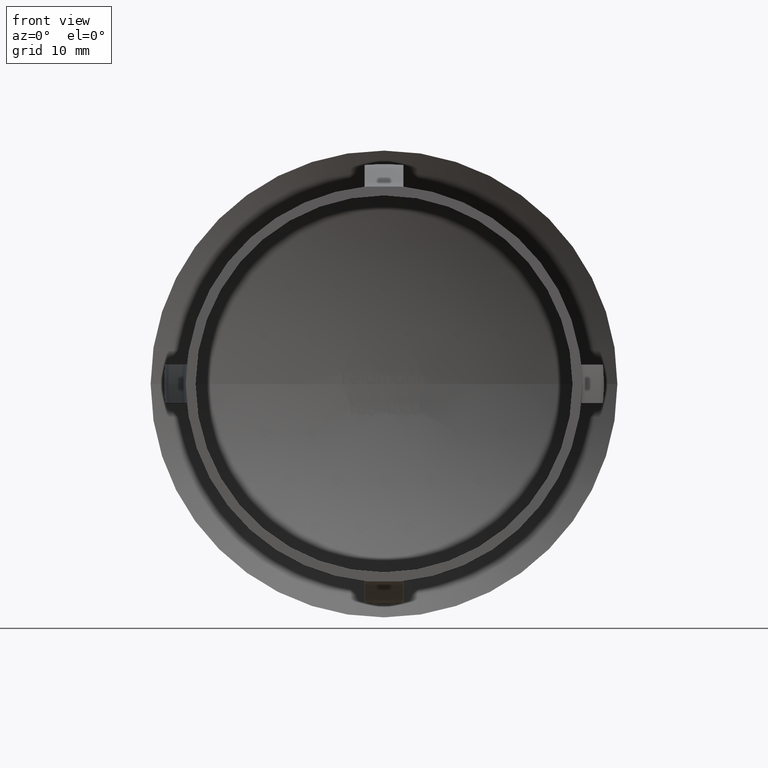
[diagram: clean part render]
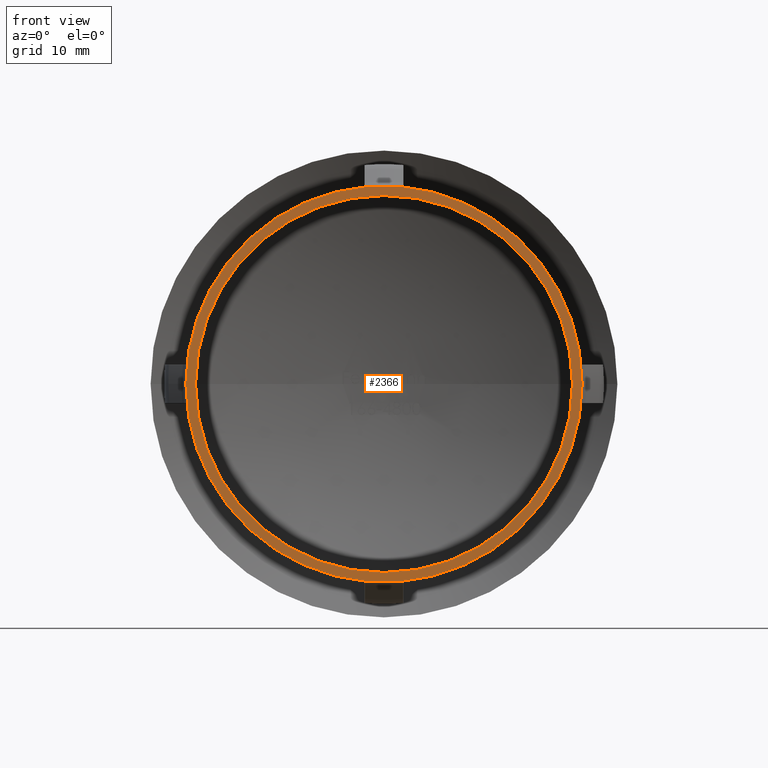
[diagram: same view with one face highlighted and labeled with its STEP entity id]
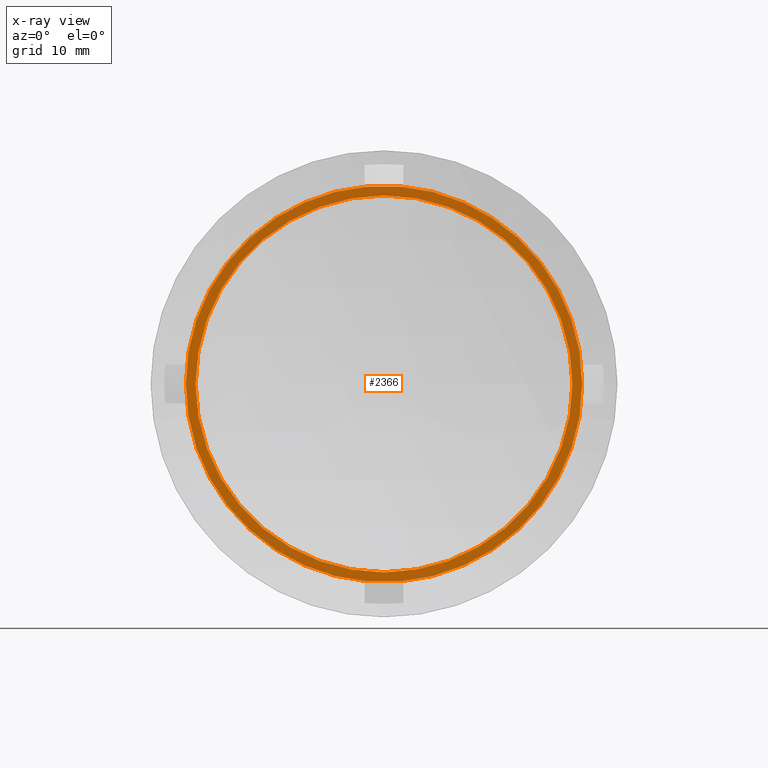
[diagram: x-ray of the same camera — body ghosted, the highlighted face saturated]
A machine part, front view. The second image highlights one B-rep face of the part: STEP entity #2366.
The next image is the same camera in x-ray: the body ghosted, the highlighted face saturated — about 0% of this face is hidden behind the body in this view.
In plain terms, the highlighted planar face has unit normal (-0, -1, 0).
Its self-contained STEP definition (entity closure, byte-faithful):
#163 = DIRECTION ( 'NONE',  ( -2.904862207577519400E-015, -1.000000000000000000, -0.0000000000000000000 ) ) ;
#428 = VERTEX_POINT ( 'NONE', #4456 ) ;
#437 = CARTESIAN_POINT ( 'NONE',  ( -8.743635244808318400E-014, 5.551115123125782700E-014, 0.0000000000000000000 ) ) ;
#496 = DIRECTION ( 'NONE',  ( 1.000000000000000000, -2.904862207577519000E-015, 0.0000000000000000000 ) ) ;
#817 = AXIS2_PLACEMENT_3D ( 'NONE', #437, #14057, #3641 ) ;
#1479 = CARTESIAN_POINT ( 'NONE',  ( -8.743635244808317200E-014, 5.898059818321144100E-014, 0.0000000000000000000 ) ) ;
#1791 = CARTESIAN_POINT ( 'NONE',  ( 20.50000000000000400, -5.690770721279668900E-016, 0.0000000000000000000 ) ) ;
#1948 = EDGE_CURVE ( 'NONE', #6779, #3374, #13815, .T. ) ;
#2024 = CARTESIAN_POINT ( 'NONE',  ( -19.50000000000017400, 1.121559642790197000E-013, 2.388061258337353900E-015 ) ) ;
#2229 = ORIENTED_EDGE ( 'NONE', *, *, #9957, .T. ) ;
#2270 = DIRECTION ( 'NONE',  ( -2.904862207577519400E-015, -1.000000000000000000, -0.0000000000000000000 ) ) ;
#2366 = ADVANCED_FACE ( 'NONE', ( #8293, #4306 ), #3148, .T. ) ;
#2601 = CIRCLE ( 'NONE', #9089, 20.50000000000009200 ) ;
#2656 = AXIS2_PLACEMENT_3D ( 'NONE', #1479, #12858, #496 ) ;
#3148 = PLANE ( 'NONE',  #12391 ) ;
#3374 = VERTEX_POINT ( 'NONE', #2024 ) ;
#3641 = DIRECTION ( 'NONE',  ( 1.000000000000000000, -2.904862207577519400E-015, 0.0000000000000000000 ) ) ;
#4293 = DIRECTION ( 'NONE',  ( 1.000000000000000000, -2.904862207577519400E-015, 0.0000000000000000000 ) ) ;
#4306 = FACE_BOUND ( 'NONE', #6874, .T. ) ;
#4456 = CARTESIAN_POINT ( 'NONE',  ( -20.50000000000017800, 1.185302734385508700E-013, 2.510525938252089900E-015 ) ) ;
#4502 = ORIENTED_EDGE ( 'NONE', *, *, #1948, .F. ) ;
#4815 = DIRECTION ( 'NONE',  ( 1.000000000000000000, -2.904862207577519000E-015, 0.0000000000000000000 ) ) ;
#5204 = AXIS2_PLACEMENT_3D ( 'NONE', #9173, #2270, #10442 ) ;
#6779 = VERTEX_POINT ( 'NONE', #11609 ) ;
#6813 = EDGE_LOOP ( 'NONE', ( #7554, #2229 ) ) ;
#6874 = EDGE_LOOP ( 'NONE', ( #4502, #14430 ) ) ;
#7094 = CARTESIAN_POINT ( 'NONE',  ( -8.743635244808317200E-014, 5.898059818321144100E-014, 0.0000000000000000000 ) ) ;
#7304 = EDGE_CURVE ( 'NONE', #3374, #6779, #10653, .T. ) ;
#7554 = ORIENTED_EDGE ( 'NONE', *, *, #7820, .T. ) ;
#7820 = EDGE_CURVE ( 'NONE', #14347, #428, #2601, .T. ) ;
#8293 = FACE_OUTER_BOUND ( 'NONE', #6813, .T. ) ;
#9089 = AXIS2_PLACEMENT_3D ( 'NONE', #7094, #163, #4815 ) ;
#9173 = CARTESIAN_POINT ( 'NONE',  ( -8.743635244808318400E-014, 5.551115123125782700E-014, 0.0000000000000000000 ) ) ;
#9957 = EDGE_CURVE ( 'NONE', #428, #14347, #9997, .T. ) ;
#9978 = DIRECTION ( 'NONE',  ( -2.904862207577519400E-015, -1.000000000000000000, 0.0000000000000000000 ) ) ;
#9997 = CIRCLE ( 'NONE', #2656, 20.50000000000009200 ) ;
#10442 = DIRECTION ( 'NONE',  ( 1.000000000000000000, -2.904862207577519400E-015, 0.0000000000000000000 ) ) ;
#10653 = CIRCLE ( 'NONE', #817, 19.50000000000008500 ) ;
#11190 = CARTESIAN_POINT ( 'NONE',  ( 19.50000000000000000, 1.421814933810087200E-015, 0.0000000000000000000 ) ) ;
#11609 = CARTESIAN_POINT ( 'NONE',  ( 19.50000000000000000, -1.133661816504052900E-015, 0.0000000000000000000 ) ) ;
#12391 = AXIS2_PLACEMENT_3D ( 'NONE', #11190, #9978, #4293 ) ;
#12858 = DIRECTION ( 'NONE',  ( -2.904862207577519400E-015, -1.000000000000000000, -0.0000000000000000000 ) ) ;
#13815 = CIRCLE ( 'NONE', #5204, 19.50000000000008500 ) ;
#14057 = DIRECTION ( 'NONE',  ( -2.904862207577519400E-015, -1.000000000000000000, -0.0000000000000000000 ) ) ;
#14347 = VERTEX_POINT ( 'NONE', #1791 ) ;
#14430 = ORIENTED_EDGE ( 'NONE', *, *, #7304, .F. ) ;